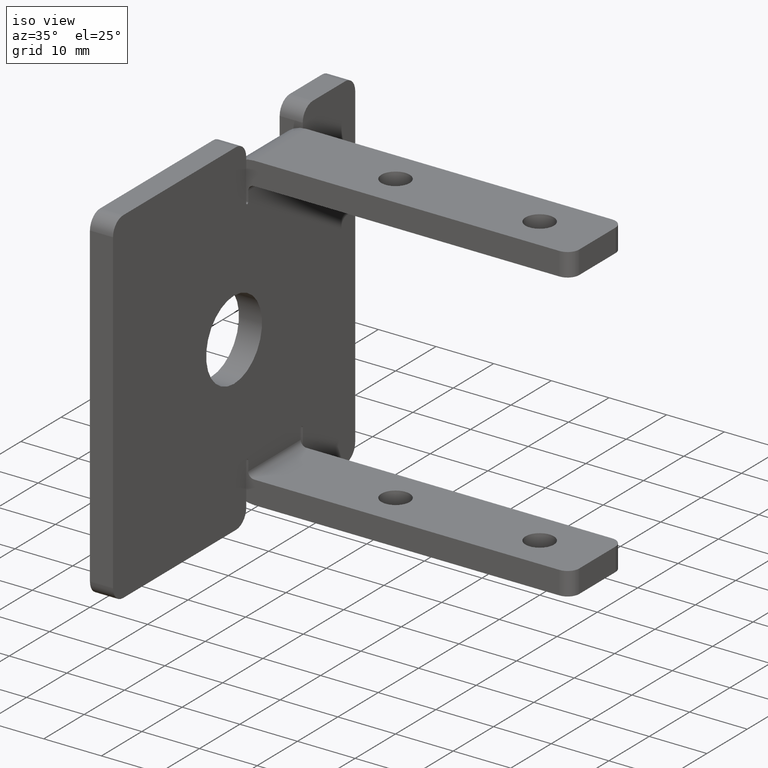
[diagram: clean part render]
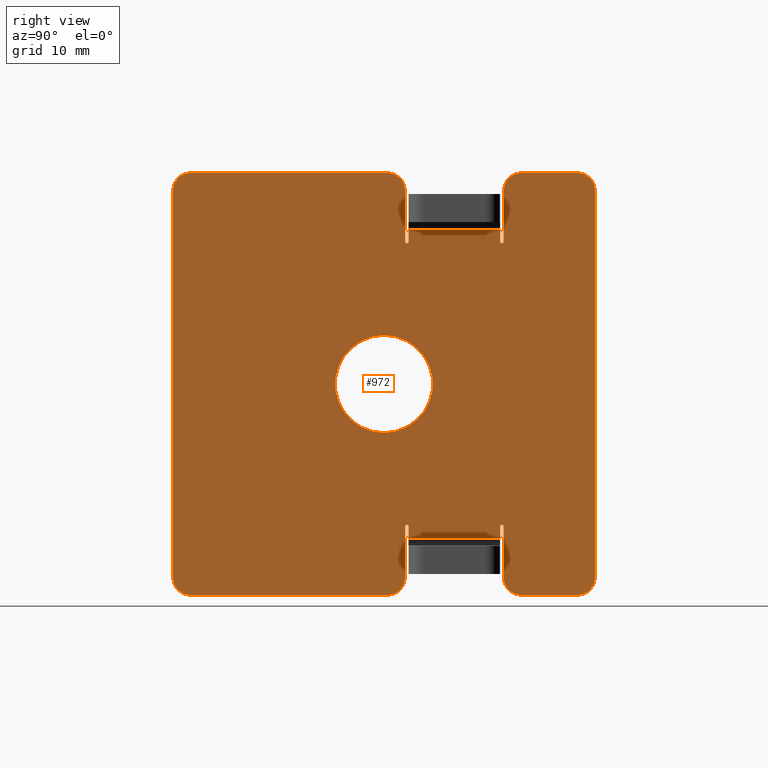
[diagram: tour spotlight — one face highlighted and labeled with its STEP entity id]
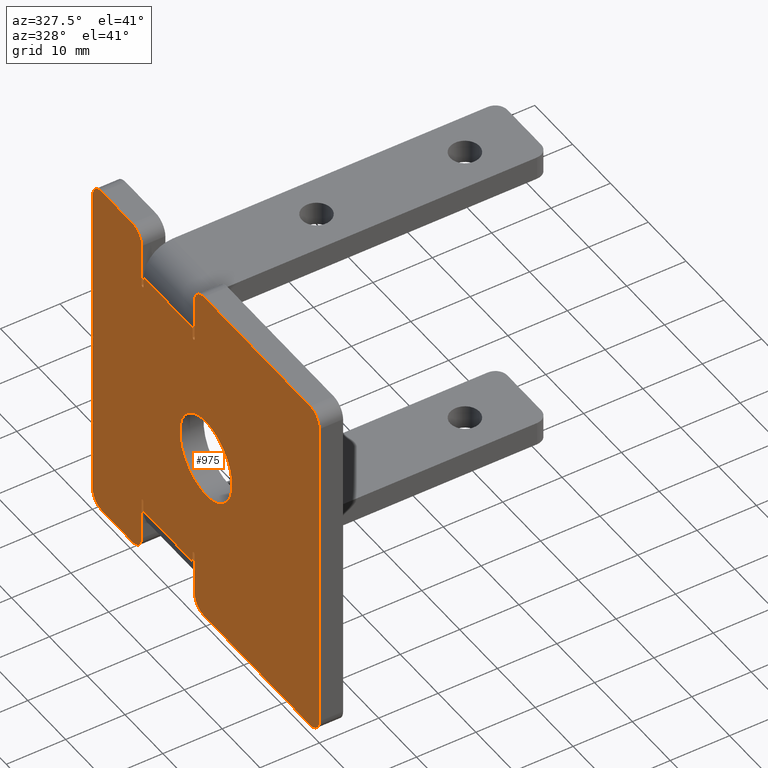
[diagram: tour spotlight — one face highlighted and labeled with its STEP entity id]
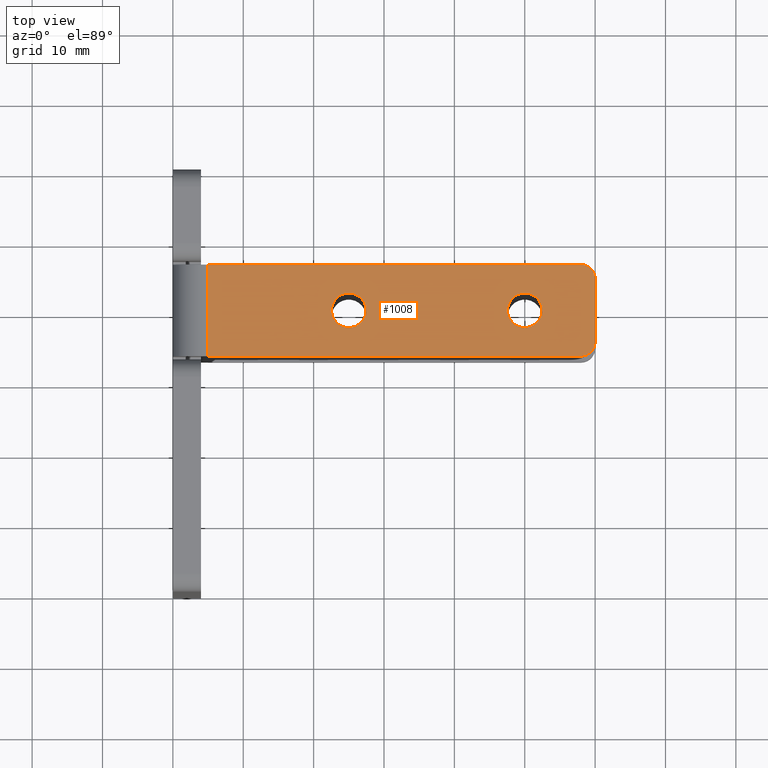
[diagram: tour spotlight — one face highlighted and labeled with its STEP entity id]
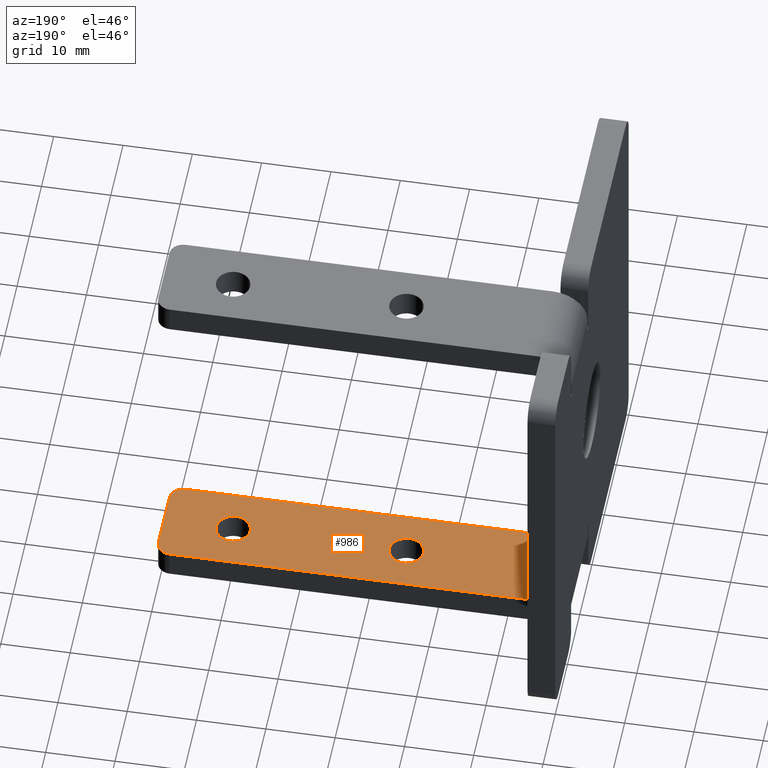
[diagram: tour spotlight — one face highlighted and labeled with its STEP entity id]
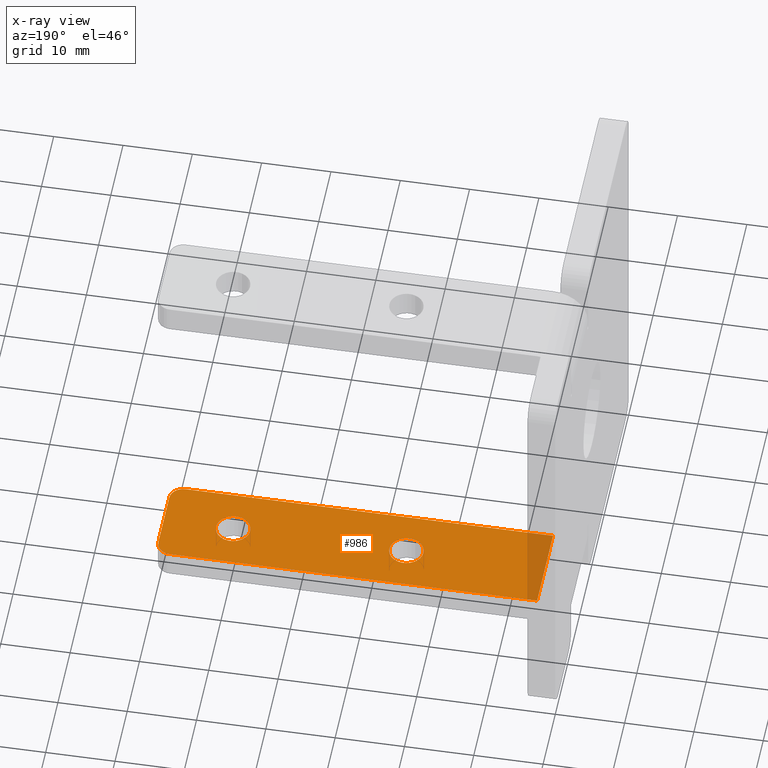
[diagram: x-ray of the same camera — body ghosted, this tour face saturated]
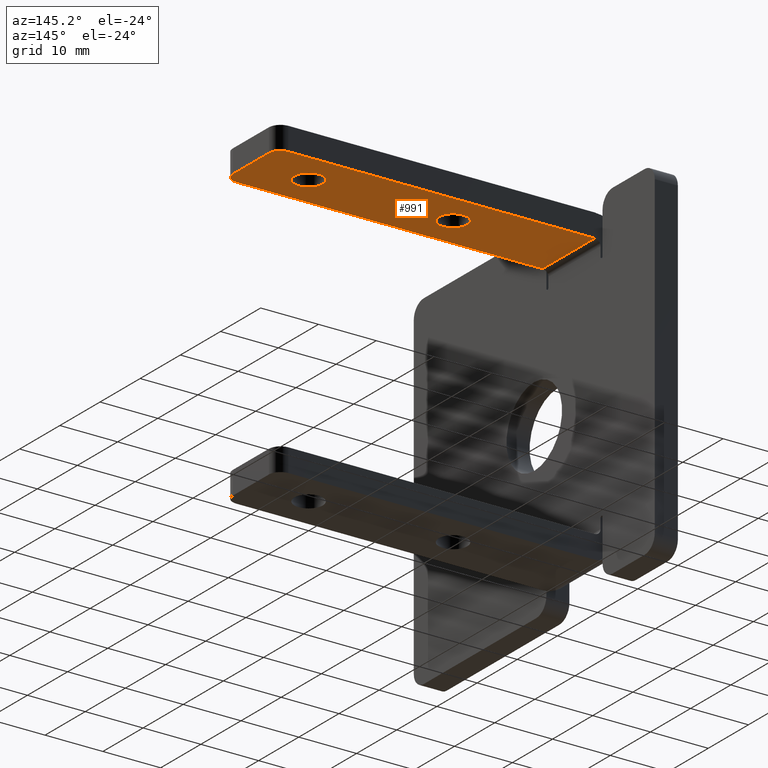
[diagram: tour spotlight — one face highlighted and labeled with its STEP entity id]
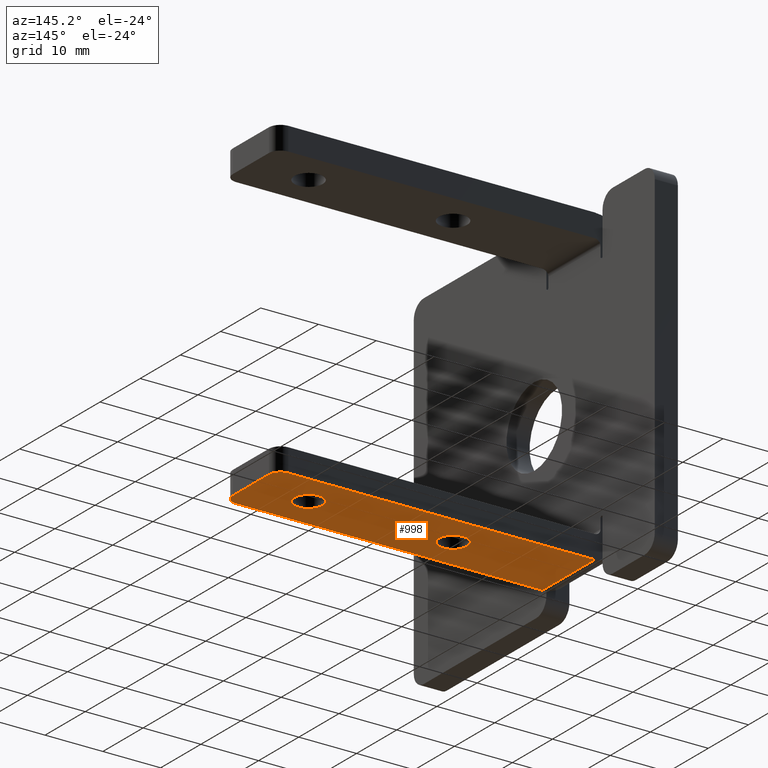
[diagram: tour spotlight — one face highlighted and labeled with its STEP entity id]
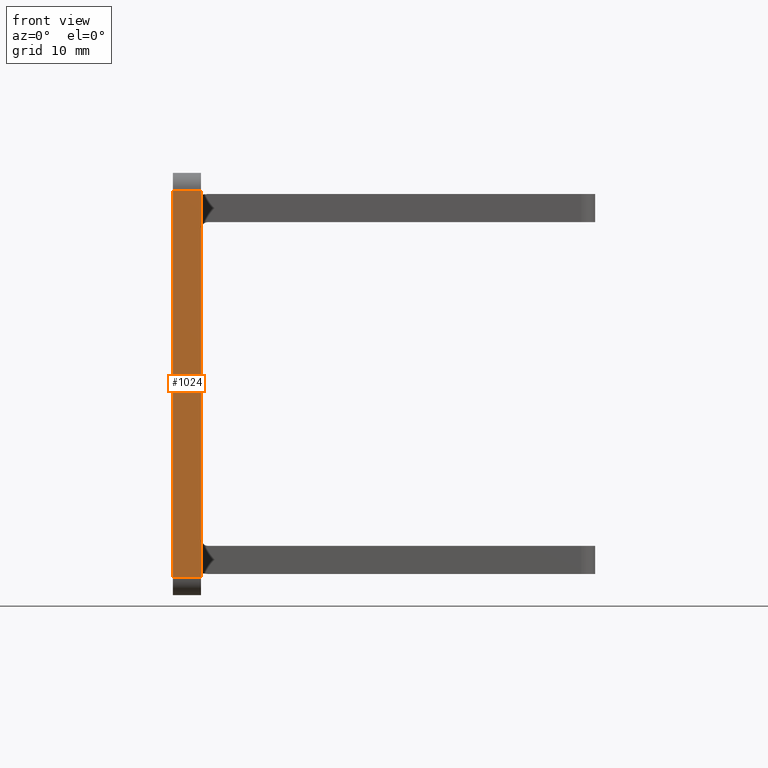
[diagram: tour spotlight — one face highlighted and labeled with its STEP entity id]
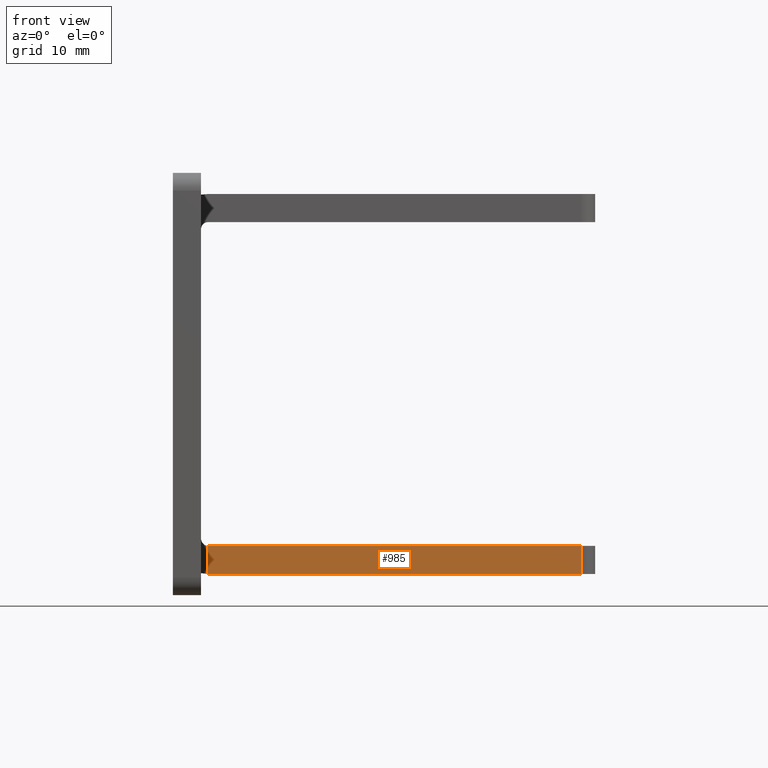
[diagram: tour spotlight — one face highlighted and labeled with its STEP entity id]
A machine part: a face-by-face anatomy tour. The part has 55 B-rep faces; the first image is the clean iso view, then the 8 largest visible faces are spotlighted one at a time (largest first), each with its STEP entity span.

Face 1 — right view, entity #972. In plain terms, the highlighted planar face has unit normal (1, 0, 0).
Definition (entity closure, byte-faithful):
#15=FACE_BOUND('',#113,.T.);
#26=PLANE('',#1049);
#57=FACE_OUTER_BOUND('',#112,.T.);
#112=EDGE_LOOP('',(#661,#662,#663,#664,#665,#666,#667,#668,#669,#670,#671,
#672,#673,#674,#675,#676,#677,#678,#679,#680,#681,#682,#683,#684,#685,#686,
#687,#688));
#113=EDGE_LOOP('',(#689,#690));
#177=LINE('',#1476,#270);
#180=LINE('',#1482,#273);
#181=LINE('',#1486,#274);
#182=LINE('',#1488,#275);
#183=LINE('',#1490,#276);
#184=LINE('',#1494,#277);
#185=LINE('',#1498,#278);
#186=LINE('',#1502,#279);
#187=LINE('',#1506,#280);
#188=LINE('',#1510,#281);
#189=LINE('',#1514,#282);
#190=LINE('',#1516,#283);
#191=LINE('',#1518,#284);
#192=LINE('',#1522,#285);
#193=LINE('',#1526,#286);
#194=LINE('',#1530,#287);
#270=VECTOR('',#1165,10.);
#273=VECTOR('',#1170,10.);
#274=VECTOR('',#1173,10.);
#275=VECTOR('',#1174,10.);
#276=VECTOR('',#1175,10.);
#277=VECTOR('',#1178,10.);
#278=VECTOR('',#1181,10.);
#279=VECTOR('',#1184,10.);
#280=VECTOR('',#1187,10.);
#281=VECTOR('',#1190,10.);
#282=VECTOR('',#1193,10.);
#283=VECTOR('',#1194,10.);
#284=VECTOR('',#1195,10.);
#285=VECTOR('',#1198,10.);
#286=VECTOR('',#1201,10.);
#287=VECTOR('',#1204,10.);
#361=CIRCLE('',#1046,2.5);
#363=CIRCLE('',#1050,0.249999999999999);
#364=CIRCLE('',#1051,0.25);
#365=CIRCLE('',#1052,2.5);
#366=CIRCLE('',#1053,2.5);
#367=CIRCLE('',#1054,2.5);
#368=CIRCLE('',#1055,2.5);
#369=CIRCLE('',#1056,0.25);
#370=CIRCLE('',#1057,0.250000000000001);
#371=CIRCLE('',#1058,2.5);
#372=CIRCLE('',#1059,2.5);
#373=CIRCLE('',#1060,2.5);
#374=CIRCLE('',#1061,6.9175);
#375=CIRCLE('',#1062,6.9175);
#414=VERTEX_POINT('',#1466);
#415=VERTEX_POINT('',#1467);
#418=VERTEX_POINT('',#1475);
#420=VERTEX_POINT('',#1481);
#421=VERTEX_POINT('',#1483);
#422=VERTEX_POINT('',#1485);
#423=VERTEX_POINT('',#1487);
#424=VERTEX_POINT('',#1489);
#425=VERTEX_POINT('',#1491);
#426=VERTEX_POINT('',#1493);
#427=VERTEX_POINT('',#1495);
#428=VERTEX_POINT('',#1497);
#429=VERTEX_POINT('',#1499);
#430=VERTEX_POINT('',#1501);
#431=VERTEX_POINT('',#1503);
#432=VERTEX_POINT('',#1505);
#433=VERTEX_POINT('',#1507);
#434=VERTEX_POINT('',#1509);
#435=VERTEX_POINT('',#1511);
#436=VERTEX_POINT('',#1513);
#437=VERTEX_POINT('',#1515);
#438=VERTEX_POINT('',#1517);
#439=VERTEX_POINT('',#1519);
#440=VERTEX_POINT('',#1521);
#441=VERTEX_POINT('',#1523);
#442=VERTEX_POINT('',#1525);
#443=VERTEX_POINT('',#1527);
#444=VERTEX_POINT('',#1529);
#445=VERTEX_POINT('',#1532);
#446=VERTEX_POINT('',#1533);
#507=EDGE_CURVE('',#414,#415,#361,.T.);
#511=EDGE_CURVE('',#415,#418,#177,.T.);
#514=EDGE_CURVE('',#414,#420,#180,.T.);
#515=EDGE_CURVE('',#420,#421,#363,.T.);
#516=EDGE_CURVE('',#421,#422,#181,.T.);
#517=EDGE_CURVE('',#422,#423,#182,.T.);
#518=EDGE_CURVE('',#423,#424,#183,.T.);
#519=EDGE_CURVE('',#424,#425,#364,.T.);
#520=EDGE_CURVE('',#425,#426,#184,.T.);
#521=EDGE_CURVE('',#427,#426,#365,.T.);
#522=EDGE_CURVE('',#428,#427,#185,.T.);
#523=EDGE_CURVE('',#429,#428,#366,.T.);
#524=EDGE_CURVE('',#430,#429,#186,.T.);
#525=EDGE_CURVE('',#431,#430,#367,.T.);
#526=EDGE_CURVE('',#432,#431,#187,.T.);
#527=EDGE_CURVE('',#433,#432,#368,.T.);
#528=EDGE_CURVE('',#433,#434,#188,.T.);
#529=EDGE_CURVE('',#434,#435,#369,.T.);
#530=EDGE_CURVE('',#435,#436,#189,.T.);
#531=EDGE_CURVE('',#436,#437,#190,.T.);
#532=EDGE_CURVE('',#437,#438,#191,.T.);
#533=EDGE_CURVE('',#438,#439,#370,.T.);
#534=EDGE_CURVE('',#439,#440,#192,.T.);
#535=EDGE_CURVE('',#441,#440,#371,.T.);
#536=EDGE_CURVE('',#442,#441,#193,.T.);
#537=EDGE_CURVE('',#443,#442,#372,.T.);
#538=EDGE_CURVE('',#444,#443,#194,.T.);
#539=EDGE_CURVE('',#418,#444,#373,.T.);
#540=EDGE_CURVE('',#445,#446,#374,.T.);
#541=EDGE_CURVE('',#446,#445,#375,.T.);
#661=ORIENTED_EDGE('',*,*,#507,.F.);
#662=ORIENTED_EDGE('',*,*,#514,.T.);
#663=ORIENTED_EDGE('',*,*,#515,.T.);
#664=ORIENTED_EDGE('',*,*,#516,.T.);
#665=ORIENTED_EDGE('',*,*,#517,.T.);
#666=ORIENTED_EDGE('',*,*,#518,.T.);
#667=ORIENTED_EDGE('',*,*,#519,.T.);
#668=ORIENTED_EDGE('',*,*,#520,.T.);
#669=ORIENTED_EDGE('',*,*,#521,.F.);
#670=ORIENTED_EDGE('',*,*,#522,.F.);
#671=ORIENTED_EDGE('',*,*,#523,.F.);
#672=ORIENTED_EDGE('',*,*,#524,.F.);
#673=ORIENTED_EDGE('',*,*,#525,.F.);
#674=ORIENTED_EDGE('',*,*,#526,.F.);
#675=ORIENTED_EDGE('',*,*,#527,.F.);
#676=ORIENTED_EDGE('',*,*,#528,.T.);
#677=ORIENTED_EDGE('',*,*,#529,.T.);
#678=ORIENTED_EDGE('',*,*,#530,.T.);
#679=ORIENTED_EDGE('',*,*,#531,.T.);
#680=ORIENTED_EDGE('',*,*,#532,.T.);
#681=ORIENTED_EDGE('',*,*,#533,.T.);
#682=ORIENTED_EDGE('',*,*,#534,.T.);
#683=ORIENTED_EDGE('',*,*,#535,.F.);
#684=ORIENTED_EDGE('',*,*,#536,.F.);
#685=ORIENTED_EDGE('',*,*,#537,.F.);
#686=ORIENTED_EDGE('',*,*,#538,.F.);
#687=ORIENTED_EDGE('',*,*,#539,.F.);
#688=ORIENTED_EDGE('',*,*,#511,.F.);
#689=ORIENTED_EDGE('',*,*,#540,.T.);
#690=ORIENTED_EDGE('',*,*,#541,.T.);
#972=ADVANCED_FACE('',(#57,#15),#26,.T.);
#1046=AXIS2_PLACEMENT_3D('',#1468,#1157,#1158);
#1049=AXIS2_PLACEMENT_3D('',#1480,#1168,#1169);
#1050=AXIS2_PLACEMENT_3D('',#1484,#1171,#1172);
#1051=AXIS2_PLACEMENT_3D('',#1492,#1176,#1177);
#1052=AXIS2_PLACEMENT_3D('',#1496,#1179,#1180);
#1053=AXIS2_PLACEMENT_3D('',#1500,#1182,#1183);
#1054=AXIS2_PLACEMENT_3D('',#1504,#1185,#1186);
#1055=AXIS2_PLACEMENT_3D('',#1508,#1188,#1189);
#1056=AXIS2_PLACEMENT_3D('',#1512,#1191,#1192);
#1057=AXIS2_PLACEMENT_3D('',#1520,#1196,#1197);
#1058=AXIS2_PLACEMENT_3D('',#1524,#1199,#1200);
#1059=AXIS2_PLACEMENT_3D('',#1528,#1202,#1203);
#1060=AXIS2_PLACEMENT_3D('',#1531,#1205,#1206);
#1061=AXIS2_PLACEMENT_3D('',#1534,#1207,#1208);
#1062=AXIS2_PLACEMENT_3D('',#1535,#1209,#1210);
#1157=DIRECTION('center_axis',(-1.,0.,0.));
#1158=DIRECTION('ref_axis',(0.,-0.707106781186547,0.707106781186547));
#1165=DIRECTION('',(0.,1.,7.40148683083438E-17));
#1168=DIRECTION('center_axis',(1.,0.,0.));
#1169=DIRECTION('ref_axis',(0.,0.,-1.));
#1170=DIRECTION('',(0.,0.,-1.));
#1171=DIRECTION('center_axis',(-1.,0.,0.));
#1172=DIRECTION('ref_axis',(0.,-1.,0.));
#1173=DIRECTION('',(0.,1.11022302462516E-15,1.));
#1174=DIRECTION('',(0.,-1.,6.34413156928661E-16));
#1175=DIRECTION('',(0.,-5.55111512312578E-16,-1.));
#1176=DIRECTION('center_axis',(-1.,0.,0.));
#1177=DIRECTION('ref_axis',(0.,1.,0.));
#1178=DIRECTION('',(0.,5.55111512312578E-16,1.));
#1179=DIRECTION('center_axis',(-1.,0.,0.));
#1180=DIRECTION('ref_axis',(0.,0.707106781186546,0.707106781186549));
#1181=DIRECTION('',(0.,1.,7.40148683083438E-17));
#1182=DIRECTION('center_axis',(-1.,0.,0.));
#1183=DIRECTION('ref_axis',(0.,-0.707106781186547,0.707106781186547));
#1184=DIRECTION('',(0.,-2.22044604925031E-16,1.));
#1185=DIRECTION('center_axis',(-1.,0.,0.));
#1186=DIRECTION('ref_axis',(0.,-0.707106781186547,-0.707106781186547));
#1187=DIRECTION('',(0.,-1.,0.));
#1188=DIRECTION('center_axis',(-1.,0.,0.));
#1189=DIRECTION('ref_axis',(0.,0.707106781186547,-0.707106781186548));
#1190=DIRECTION('',(0.,1.38777878078146E-16,1.));
#1191=DIRECTION('center_axis',(-1.,0.,0.));
#1192=DIRECTION('ref_axis',(0.,1.,0.));
#1193=DIRECTION('',(0.,0.,-1.));
#1194=DIRECTION('',(0.,1.,0.));
#1195=DIRECTION('',(0.,0.,1.));
#1196=DIRECTION('center_axis',(-1.,0.,0.));
#1197=DIRECTION('ref_axis',(0.,-1.,0.));
#1198=DIRECTION('',(0.,0.,-1.));
#1199=DIRECTION('center_axis',(-1.,0.,0.));
#1200=DIRECTION('ref_axis',(0.,-0.707106781186547,-0.707106781186547));
#1201=DIRECTION('',(0.,-1.,0.));
#1202=DIRECTION('center_axis',(-1.,0.,0.));
#1203=DIRECTION('ref_axis',(0.,0.707106781186547,-0.707106781186547));
#1204=DIRECTION('',(0.,1.48029736616688E-16,-1.));
#1205=DIRECTION('center_axis',(-1.,0.,0.));
#1206=DIRECTION('ref_axis',(0.,0.707106781186547,0.707106781186547));
#1207=DIRECTION('center_axis',(-1.,0.,0.));
#1208=DIRECTION('ref_axis',(0.,0.,-1.));
#1209=DIRECTION('center_axis',(-1.,0.,0.));
#1210=DIRECTION('ref_axis',(0.,0.,-1.));
#1466=CARTESIAN_POINT('',(4.,17.0000000000001,27.5));
#1467=CARTESIAN_POINT('',(4.,19.5000000000001,30.));
#1468=CARTESIAN_POINT('Origin',(4.,19.5000000000001,27.5));
#1475=CARTESIAN_POINT('',(4.,27.5,30.));
#1476=CARTESIAN_POINT('',(4.,30.,30.));
#1480=CARTESIAN_POINT('Origin',(4.,1.11022302462516E-15,-8.07434927000114E-16));
#1481=CARTESIAN_POINT('',(4.,17.0000000000001,20.2500000000018));
#1482=CARTESIAN_POINT('',(4.,17.0000000000001,11.0000000000009));
#1483=CARTESIAN_POINT('',(4.,16.5000000000001,20.2500000000018));
#1484=CARTESIAN_POINT('Origin',(4.,16.7500000000001,20.2500000000018));
#1485=CARTESIAN_POINT('',(4.,16.5000000000001,22.0000000000018));
#1486=CARTESIAN_POINT('',(4.,16.5000000000001,11.0000000000009));
#1487=CARTESIAN_POINT('',(4.,3.50000000000007,22.0000000000018));
#1488=CARTESIAN_POINT('',(4.,1.50000000000004,22.0000000000018));
#1489=CARTESIAN_POINT('',(4.,3.50000000000007,20.2500000000019));
#1490=CARTESIAN_POINT('',(4.,3.50000000000006,10.1250000000009));
#1491=CARTESIAN_POINT('',(4.,3.00000000000007,20.2500000000019));
#1492=CARTESIAN_POINT('Origin',(4.,3.25000000000007,20.2500000000019));
#1493=CARTESIAN_POINT('',(4.,3.00000000000007,27.5));
#1494=CARTESIAN_POINT('',(4.,3.00000000000006,11.0000000000009));
#1495=CARTESIAN_POINT('',(4.,0.500000000000065,30.));
#1496=CARTESIAN_POINT('Origin',(4.,0.500000000000067,27.5));
#1497=CARTESIAN_POINT('',(4.,-27.5,30.));
#1498=CARTESIAN_POINT('',(4.,30.,30.));
#1499=CARTESIAN_POINT('',(4.,-30.,27.5));
#1500=CARTESIAN_POINT('Origin',(4.,-27.5,27.5));
#1501=CARTESIAN_POINT('',(4.,-30.,-27.5));
#1502=CARTESIAN_POINT('',(4.,-30.,30.));
#1503=CARTESIAN_POINT('',(4.,-27.5,-30.));
#1504=CARTESIAN_POINT('Origin',(4.,-27.5,-27.5));
#1505=CARTESIAN_POINT('',(4.,0.500000000000007,-30.));
#1506=CARTESIAN_POINT('',(4.,-30.,-30.));
#1507=CARTESIAN_POINT('',(4.,3.00000000000001,-27.5));
#1508=CARTESIAN_POINT('Origin',(4.,0.500000000000009,-27.5));
#1509=CARTESIAN_POINT('',(4.,3.00000000000001,-20.2500000000001));
#1510=CARTESIAN_POINT('',(4.,3.00000000000001,-11.));
#1511=CARTESIAN_POINT('',(4.,3.50000000000001,-20.2500000000001));
#1512=CARTESIAN_POINT('Origin',(4.,3.25000000000001,-20.2500000000001));
#1513=CARTESIAN_POINT('',(4.,3.50000000000001,-22.0000000000001));
#1514=CARTESIAN_POINT('',(4.,3.50000000000001,-11.));
#1515=CARTESIAN_POINT('',(4.,16.5,-22.0000000000001));
#1516=CARTESIAN_POINT('',(4.,8.50000000000001,-22.0000000000001));
#1517=CARTESIAN_POINT('',(4.,16.5,-20.2500000000001));
#1518=CARTESIAN_POINT('',(4.,16.5,-10.125));
#1519=CARTESIAN_POINT('',(4.,17.,-20.2500000000001));
#1520=CARTESIAN_POINT('Origin',(4.,16.75,-20.2500000000001));
#1521=CARTESIAN_POINT('',(4.,17.,-27.5));
#1522=CARTESIAN_POINT('',(4.,17.,-11.));
#1523=CARTESIAN_POINT('',(4.,19.5,-30.));
#1524=CARTESIAN_POINT('Origin',(4.,19.5,-27.5));
#1525=CARTESIAN_POINT('',(4.,27.5,-30.));
#1526=CARTESIAN_POINT('',(4.,-30.,-30.));
#1527=CARTESIAN_POINT('',(4.,30.,-27.5));
#1528=CARTESIAN_POINT('Origin',(4.,27.5,-27.5));
#1529=CARTESIAN_POINT('',(4.,30.,27.5));
#1530=CARTESIAN_POINT('',(4.,30.,-30.));
#1531=CARTESIAN_POINT('Origin',(4.,27.5,27.5));
#1532=CARTESIAN_POINT('',(4.,2.22044604925031E-15,-6.9175));
#1533=CARTESIAN_POINT('',(4.,1.37329662594013E-15,6.9175));
#1534=CARTESIAN_POINT('Origin',(4.,2.22044604925031E-15,0.));
#1535=CARTESIAN_POINT('Origin',(4.,2.22044604925031E-15,0.));

Face 2 — auxiliary view, entity #975. In plain terms, the highlighted planar face has unit normal (1, 0, 0).
Definition (entity closure, byte-faithful):
#16=FACE_BOUND('',#117,.T.);
#28=PLANE('',#1066);
#60=FACE_OUTER_BOUND('',#116,.T.);
#116=EDGE_LOOP('',(#699,#700,#701,#702,#703,#704,#705,#706,#707,#708,#709,
#710,#711,#712,#713,#714,#715,#716,#717,#718,#719,#720,#721,#722,#723,#724,
#725,#726));
#117=EDGE_LOOP('',(#727));
#179=LINE('',#1479,#272);
#197=LINE('',#1544,#290);
#199=LINE('',#1550,#292);
#200=LINE('',#1553,#293);
#201=LINE('',#1557,#294);
#202=LINE('',#1559,#295);
#203=LINE('',#1561,#296);
#204=LINE('',#1565,#297);
#205=LINE('',#1569,#298);
#206=LINE('',#1573,#299);
#207=LINE('',#1577,#300);
#208=LINE('',#1581,#301);
#209=LINE('',#1585,#302);
#210=LINE('',#1587,#303);
#211=LINE('',#1589,#304);
#212=LINE('',#1592,#305);
#272=VECTOR('',#1167,10.);
#290=VECTOR('',#1219,10.);
#292=VECTOR('',#1225,10.);
#293=VECTOR('',#1228,10.);
#294=VECTOR('',#1231,10.);
#295=VECTOR('',#1232,10.);
#296=VECTOR('',#1233,10.);
#297=VECTOR('',#1236,10.);
#298=VECTOR('',#1239,10.);
#299=VECTOR('',#1242,10.);
#300=VECTOR('',#1245,10.);
#301=VECTOR('',#1248,10.);
#302=VECTOR('',#1251,10.);
#303=VECTOR('',#1252,10.);
#304=VECTOR('',#1253,10.);
#305=VECTOR('',#1256,10.);
#362=CIRCLE('',#1047,2.5);
#376=CIRCLE('',#1064,2.5);
#377=CIRCLE('',#1067,2.5);
#378=CIRCLE('',#1068,2.5);
#379=CIRCLE('',#1069,0.250000000000001);
#380=CIRCLE('',#1070,0.25);
#381=CIRCLE('',#1071,2.5);
#382=CIRCLE('',#1072,2.5);
#383=CIRCLE('',#1073,2.5);
#384=CIRCLE('',#1074,2.5);
#385=CIRCLE('',#1075,0.25);
#386=CIRCLE('',#1076,0.249999999999999);
#387=CIRCLE('',#1077,6.9175);
#416=VERTEX_POINT('',#1469);
#417=VERTEX_POINT('',#1471);
#419=VERTEX_POINT('',#1477);
#447=VERTEX_POINT('',#1537);
#448=VERTEX_POINT('',#1538);
#449=VERTEX_POINT('',#1543);
#450=VERTEX_POINT('',#1547);
#451=VERTEX_POINT('',#1549);
#452=VERTEX_POINT('',#1552);
#453=VERTEX_POINT('',#1554);
#454=VERTEX_POINT('',#1556);
#455=VERTEX_POINT('',#1558);
#456=VERTEX_POINT('',#1560);
#457=VERTEX_POINT('',#1562);
#458=VERTEX_POINT('',#1564);
#459=VERTEX_POINT('',#1566);
#460=VERTEX_POINT('',#1568);
#461=VERTEX_POINT('',#1570);
#462=VERTEX_POINT('',#1572);
#463=VERTEX_POINT('',#1574);
#464=VERTEX_POINT('',#1576);
#465=VERTEX_POINT('',#1578);
#466=VERTEX_POINT('',#1580);
#467=VERTEX_POINT('',#1582);
#468=VERTEX_POINT('',#1584);
#469=VERTEX_POINT('',#1586);
#470=VERTEX_POINT('',#1588);
#471=VERTEX_POINT('',#1590);
#472=VERTEX_POINT('',#1593);
#509=EDGE_CURVE('',#416,#417,#362,.T.);
#513=EDGE_CURVE('',#419,#416,#179,.T.);
#542=EDGE_CURVE('',#447,#448,#376,.T.);
#545=EDGE_CURVE('',#448,#449,#197,.T.);
#547=EDGE_CURVE('',#450,#419,#377,.T.);
#548=EDGE_CURVE('',#451,#450,#199,.T.);
#549=EDGE_CURVE('',#449,#451,#378,.T.);
#550=EDGE_CURVE('',#447,#452,#200,.T.);
#551=EDGE_CURVE('',#452,#453,#379,.T.);
#552=EDGE_CURVE('',#453,#454,#201,.T.);
#553=EDGE_CURVE('',#454,#455,#202,.T.);
#554=EDGE_CURVE('',#455,#456,#203,.T.);
#555=EDGE_CURVE('',#456,#457,#380,.T.);
#556=EDGE_CURVE('',#457,#458,#204,.T.);
#557=EDGE_CURVE('',#459,#458,#381,.T.);
#558=EDGE_CURVE('',#460,#459,#205,.T.);
#559=EDGE_CURVE('',#461,#460,#382,.T.);
#560=EDGE_CURVE('',#462,#461,#206,.T.);
#561=EDGE_CURVE('',#463,#462,#383,.T.);
#562=EDGE_CURVE('',#464,#463,#207,.T.);
#563=EDGE_CURVE('',#465,#464,#384,.T.);
#564=EDGE_CURVE('',#465,#466,#208,.T.);
#565=EDGE_CURVE('',#466,#467,#385,.T.);
#566=EDGE_CURVE('',#467,#468,#209,.T.);
#567=EDGE_CURVE('',#468,#469,#210,.T.);
#568=EDGE_CURVE('',#469,#470,#211,.T.);
#569=EDGE_CURVE('',#470,#471,#386,.T.);
#570=EDGE_CURVE('',#471,#417,#212,.T.);
#571=EDGE_CURVE('',#472,#472,#387,.T.);
#699=ORIENTED_EDGE('',*,*,#509,.F.);
#700=ORIENTED_EDGE('',*,*,#513,.F.);
#701=ORIENTED_EDGE('',*,*,#547,.F.);
#702=ORIENTED_EDGE('',*,*,#548,.F.);
#703=ORIENTED_EDGE('',*,*,#549,.F.);
#704=ORIENTED_EDGE('',*,*,#545,.F.);
#705=ORIENTED_EDGE('',*,*,#542,.F.);
#706=ORIENTED_EDGE('',*,*,#550,.T.);
#707=ORIENTED_EDGE('',*,*,#551,.T.);
#708=ORIENTED_EDGE('',*,*,#552,.T.);
#709=ORIENTED_EDGE('',*,*,#553,.T.);
#710=ORIENTED_EDGE('',*,*,#554,.T.);
#711=ORIENTED_EDGE('',*,*,#555,.T.);
#712=ORIENTED_EDGE('',*,*,#556,.T.);
#713=ORIENTED_EDGE('',*,*,#557,.F.);
#714=ORIENTED_EDGE('',*,*,#558,.F.);
#715=ORIENTED_EDGE('',*,*,#559,.F.);
#716=ORIENTED_EDGE('',*,*,#560,.F.);
#717=ORIENTED_EDGE('',*,*,#561,.F.);
#718=ORIENTED_EDGE('',*,*,#562,.F.);
#719=ORIENTED_EDGE('',*,*,#563,.F.);
#720=ORIENTED_EDGE('',*,*,#564,.T.);
#721=ORIENTED_EDGE('',*,*,#565,.T.);
#722=ORIENTED_EDGE('',*,*,#566,.T.);
#723=ORIENTED_EDGE('',*,*,#567,.T.);
#724=ORIENTED_EDGE('',*,*,#568,.T.);
#725=ORIENTED_EDGE('',*,*,#569,.T.);
#726=ORIENTED_EDGE('',*,*,#570,.T.);
#727=ORIENTED_EDGE('',*,*,#571,.T.);
#975=ADVANCED_FACE('',(#60,#16),#28,.F.);
#1047=AXIS2_PLACEMENT_3D('',#1472,#1160,#1161);
#1064=AXIS2_PLACEMENT_3D('',#1539,#1213,#1214);
#1066=AXIS2_PLACEMENT_3D('',#1546,#1221,#1222);
#1067=AXIS2_PLACEMENT_3D('',#1548,#1223,#1224);
#1068=AXIS2_PLACEMENT_3D('',#1551,#1226,#1227);
#1069=AXIS2_PLACEMENT_3D('',#1555,#1229,#1230);
#1070=AXIS2_PLACEMENT_3D('',#1563,#1234,#1235);
#1071=AXIS2_PLACEMENT_3D('',#1567,#1237,#1238);
#1072=AXIS2_PLACEMENT_3D('',#1571,#1240,#1241);
#1073=AXIS2_PLACEMENT_3D('',#1575,#1243,#1244);
#1074=AXIS2_PLACEMENT_3D('',#1579,#1246,#1247);
#1075=AXIS2_PLACEMENT_3D('',#1583,#1249,#1250);
#1076=AXIS2_PLACEMENT_3D('',#1591,#1254,#1255);
#1077=AXIS2_PLACEMENT_3D('',#1594,#1257,#1258);
#1160=DIRECTION('center_axis',(1.,0.,0.));
#1161=DIRECTION('ref_axis',(0.,-0.707106781186547,0.707106781186547));
#1167=DIRECTION('',(0.,-1.,-7.40148683083438E-17));
#1213=DIRECTION('center_axis',(1.,0.,0.));
#1214=DIRECTION('ref_axis',(0.,-0.707106781186547,-0.707106781186547));
#1219=DIRECTION('',(0.,1.,0.));
#1221=DIRECTION('center_axis',(1.,0.,0.));
#1222=DIRECTION('ref_axis',(0.,0.,-1.));
#1223=DIRECTION('center_axis',(1.,0.,0.));
#1224=DIRECTION('ref_axis',(0.,0.707106781186547,0.707106781186547));
#1225=DIRECTION('',(0.,-1.48029736616688E-16,1.));
#1226=DIRECTION('center_axis',(1.,0.,0.));
#1227=DIRECTION('ref_axis',(0.,0.707106781186547,-0.707106781186547));
#1228=DIRECTION('',(0.,0.,1.));
#1229=DIRECTION('center_axis',(1.,0.,0.));
#1230=DIRECTION('ref_axis',(0.,-1.,0.));
#1231=DIRECTION('',(0.,0.,-1.));
#1232=DIRECTION('',(0.,-1.,0.));
#1233=DIRECTION('',(0.,0.,1.));
#1234=DIRECTION('center_axis',(1.,0.,0.));
#1235=DIRECTION('ref_axis',(0.,1.,0.));
#1236=DIRECTION('',(0.,-1.38777878078146E-16,-1.));
#1237=DIRECTION('center_axis',(1.,0.,0.));
#1238=DIRECTION('ref_axis',(0.,0.707106781186547,-0.707106781186548));
#1239=DIRECTION('',(0.,1.,0.));
#1240=DIRECTION('center_axis',(1.,0.,0.));
#1241=DIRECTION('ref_axis',(0.,-0.707106781186547,-0.707106781186547));
#1242=DIRECTION('',(0.,2.22044604925031E-16,-1.));
#1243=DIRECTION('center_axis',(1.,0.,0.));
#1244=DIRECTION('ref_axis',(0.,-0.707106781186547,0.707106781186547));
#1245=DIRECTION('',(0.,-1.,-7.40148683083438E-17));
#1246=DIRECTION('center_axis',(1.,0.,0.));
#1247=DIRECTION('ref_axis',(0.,0.707106781186546,0.707106781186549));
#1248=DIRECTION('',(0.,-5.55111512312578E-16,-1.));
#1249=DIRECTION('center_axis',(1.,0.,0.));
#1250=DIRECTION('ref_axis',(0.,1.,0.));
#1251=DIRECTION('',(0.,5.55111512312578E-16,1.));
#1252=DIRECTION('',(0.,1.,-6.34413156928661E-16));
#1253=DIRECTION('',(0.,-1.11022302462516E-15,-1.));
#1254=DIRECTION('center_axis',(1.,0.,0.));
#1255=DIRECTION('ref_axis',(0.,-1.,0.));
#1256=DIRECTION('',(0.,0.,1.));
#1257=DIRECTION('center_axis',(1.,0.,0.));
#1258=DIRECTION('ref_axis',(0.,0.,-1.));
#1469=CARTESIAN_POINT('',(0.,19.5000000000001,30.));
#1471=CARTESIAN_POINT('',(0.,17.0000000000001,27.5));
#1472=CARTESIAN_POINT('Origin',(0.,19.5000000000001,27.5));
#1477=CARTESIAN_POINT('',(0.,27.5,30.));
#1479=CARTESIAN_POINT('',(0.,30.,30.));
#1537=CARTESIAN_POINT('',(0.,17.,-27.5));
#1538=CARTESIAN_POINT('',(0.,19.5,-30.));
#1539=CARTESIAN_POINT('Origin',(0.,19.5,-27.5));
#1543=CARTESIAN_POINT('',(0.,27.5,-30.));
#1544=CARTESIAN_POINT('',(0.,-30.,-30.));
#1546=CARTESIAN_POINT('Origin',(0.,1.11022302462516E-15,-1.31208175637519E-15));
#1547=CARTESIAN_POINT('',(0.,30.,27.5));
#1548=CARTESIAN_POINT('Origin',(0.,27.5,27.5));
#1549=CARTESIAN_POINT('',(0.,30.,-27.5));
#1550=CARTESIAN_POINT('',(0.,30.,-30.));
#1551=CARTESIAN_POINT('Origin',(0.,27.5,-27.5));
#1552=CARTESIAN_POINT('',(-1.11022302462516E-15,17.,-20.2500000000001));
#1553=CARTESIAN_POINT('',(0.,17.,-11.));
#1554=CARTESIAN_POINT('',(-1.11022302462516E-15,16.5,-20.2500000000001));
#1555=CARTESIAN_POINT('Origin',(0.,16.75,-20.2500000000001));
#1556=CARTESIAN_POINT('',(-1.11022302462516E-15,16.5,-22.0000000000001));
#1557=CARTESIAN_POINT('',(0.,16.5,-10.125));
#1558=CARTESIAN_POINT('',(0.,3.50000000000001,-22.0000000000001));
#1559=CARTESIAN_POINT('',(0.,8.50000000000001,-22.0000000000001));
#1560=CARTESIAN_POINT('',(0.,3.50000000000001,-20.2500000000001));
#1561=CARTESIAN_POINT('',(0.,3.50000000000001,-11.));
#1562=CARTESIAN_POINT('',(0.,3.00000000000001,-20.2500000000001));
#1563=CARTESIAN_POINT('Origin',(0.,3.25000000000001,-20.2500000000001));
#1564=CARTESIAN_POINT('',(0.,3.00000000000001,-27.5));
#1565=CARTESIAN_POINT('',(0.,3.00000000000001,-11.));
#1566=CARTESIAN_POINT('',(0.,0.500000000000007,-30.));
#1567=CARTESIAN_POINT('Origin',(0.,0.500000000000009,-27.5));
#1568=CARTESIAN_POINT('',(0.,-27.5,-30.));
#1569=CARTESIAN_POINT('',(0.,-30.,-30.));
#1570=CARTESIAN_POINT('',(0.,-30.,-27.5));
#1571=CARTESIAN_POINT('Origin',(0.,-27.5,-27.5));
#1572=CARTESIAN_POINT('',(0.,-30.,27.5));
#1573=CARTESIAN_POINT('',(0.,-30.,30.));
#1574=CARTESIAN_POINT('',(0.,-27.5,30.));
#1575=CARTESIAN_POINT('Origin',(0.,-27.5,27.5));
#1576=CARTESIAN_POINT('',(0.,0.500000000000065,30.));
#1577=CARTESIAN_POINT('',(0.,30.,30.));
#1578=CARTESIAN_POINT('',(0.,3.00000000000007,27.5));
#1579=CARTESIAN_POINT('Origin',(0.,0.500000000000067,27.5));
#1580=CARTESIAN_POINT('',(0.,3.00000000000007,20.2500000000019));
#1581=CARTESIAN_POINT('',(0.,3.00000000000006,11.0000000000009));
#1582=CARTESIAN_POINT('',(0.,3.50000000000007,20.2500000000019));
#1583=CARTESIAN_POINT('Origin',(0.,3.25000000000007,20.2500000000019));
#1584=CARTESIAN_POINT('',(0.,3.50000000000007,22.0000000000018));
#1585=CARTESIAN_POINT('',(0.,3.50000000000006,10.1250000000009));
#1586=CARTESIAN_POINT('',(-5.55111512312578E-16,16.5000000000001,22.0000000000018));
#1587=CARTESIAN_POINT('',(0.,1.50000000000004,22.0000000000018));
#1588=CARTESIAN_POINT('',(-5.55111512312578E-16,16.5000000000001,20.2500000000018));
#1589=CARTESIAN_POINT('',(0.,16.5000000000001,11.0000000000009));
#1590=CARTESIAN_POINT('',(-5.55111512312578E-16,17.0000000000001,20.2500000000018));
#1591=CARTESIAN_POINT('Origin',(0.,16.7500000000001,20.2500000000018));
#1592=CARTESIAN_POINT('',(0.,17.0000000000001,11.0000000000009));
#1593=CARTESIAN_POINT('',(0.,1.37329662594013E-15,6.9175));
#1594=CARTESIAN_POINT('Origin',(0.,2.22044604925031E-15,0.));

Face 3 — top view, entity #1008. In plain terms, the highlighted planar face has unit normal (0, -0, -1).
Definition (entity closure, byte-faithful):
#23=FACE_BOUND('',#157,.T.);
#24=FACE_BOUND('',#158,.T.);
#46=PLANE('',#1136);
#93=FACE_OUTER_BOUND('',#156,.T.);
#156=EDGE_LOOP('',(#872,#873,#874,#875,#876,#877));
#157=EDGE_LOOP('',(#878));
#158=EDGE_LOOP('',(#879));
#239=LINE('',#1680,#332);
#245=LINE('',#1697,#338);
#254=LINE('',#1721,#347);
#257=LINE('',#1731,#350);
#332=VECTOR('',#1347,10.);
#338=VECTOR('',#1363,2.76);
#347=VECTOR('',#1402,10.);
#350=VECTOR('',#1419,10.);
#389=CIRCLE('',#1080,2.4585);
#394=CIRCLE('',#1087,2.4585);
#402=CIRCLE('',#1106,2.);
#405=CIRCLE('',#1112,2.);
#474=VERTEX_POINT('',#1598);
#479=VERTEX_POINT('',#1612);
#495=VERTEX_POINT('',#1667);
#496=VERTEX_POINT('',#1668);
#500=VERTEX_POINT('',#1678);
#504=VERTEX_POINT('',#1690);
#505=VERTEX_POINT('',#1691);
#506=VERTEX_POINT('',#1696);
#574=EDGE_CURVE('',#474,#474,#389,.T.);
#581=EDGE_CURVE('',#479,#479,#394,.T.);
#608=EDGE_CURVE('',#495,#496,#402,.T.);
#614=EDGE_CURVE('',#500,#495,#239,.T.);
#619=EDGE_CURVE('',#504,#505,#405,.T.);
#622=EDGE_CURVE('',#505,#506,#245,.T.);
#635=EDGE_CURVE('',#500,#506,#254,.T.);
#642=EDGE_CURVE('',#496,#504,#257,.T.);
#872=ORIENTED_EDGE('',*,*,#608,.F.);
#873=ORIENTED_EDGE('',*,*,#614,.F.);
#874=ORIENTED_EDGE('',*,*,#635,.T.);
#875=ORIENTED_EDGE('',*,*,#622,.F.);
#876=ORIENTED_EDGE('',*,*,#619,.F.);
#877=ORIENTED_EDGE('',*,*,#642,.F.);
#878=ORIENTED_EDGE('',*,*,#574,.T.);
#879=ORIENTED_EDGE('',*,*,#581,.T.);
#1008=ADVANCED_FACE('',(#93,#23,#24),#46,.F.);
#1080=AXIS2_PLACEMENT_3D('',#1600,#1264,#1265);
#1087=AXIS2_PLACEMENT_3D('',#1614,#1280,#1281);
#1106=AXIS2_PLACEMENT_3D('',#1669,#1337,#1338);
#1112=AXIS2_PLACEMENT_3D('',#1692,#1357,#1358);
#1136=AXIS2_PLACEMENT_3D('',#1732,#1420,#1421);
#1264=DIRECTION('center_axis',(8.96531326006043E-16,-1.74922431089387E-16,
-1.));
#1265=DIRECTION('ref_axis',(-1.,0.,-8.21021133884374E-16));
#1280=DIRECTION('center_axis',(8.96531326006043E-16,-1.74922431089387E-16,
-1.));
#1281=DIRECTION('ref_axis',(-1.,0.,-8.21021133884374E-16));
#1337=DIRECTION('center_axis',(8.96531326006043E-16,-1.74922431089387E-16,
-1.));
#1338=DIRECTION('ref_axis',(0.707106781186547,0.707106781186548,0.));
#1347=DIRECTION('',(1.,5.91645678915759E-31,9.49410759657493E-16));
#1357=DIRECTION('center_axis',(8.96531326006043E-16,-1.74922431089387E-16,
-1.));
#1358=DIRECTION('ref_axis',(0.707106781186549,-0.707106781186546,0.));
#1363=DIRECTION('',(-1.,5.35910941046883E-31,7.20840456568217E-16));
#1402=DIRECTION('',(3.94430452610506E-31,-1.,1.74922431089387E-16));
#1419=DIRECTION('',(-6.3441315692866E-16,-1.,-4.88010120714363E-17));
#1420=DIRECTION('center_axis',(8.96531326006043E-16,-1.74922431089387E-16,
-1.));
#1421=DIRECTION('ref_axis',(-1.,6.3441315692866E-16,-8.96531326006043E-16));
#1598=CARTESIAN_POINT('',(52.4585,10.,27.0000000000019));
#1600=CARTESIAN_POINT('Origin',(50.,10.,27.0000000000019));
#1612=CARTESIAN_POINT('',(27.4585,10.,27.0000000000019));
#1614=CARTESIAN_POINT('Origin',(25.,10.,27.0000000000019));
#1667=CARTESIAN_POINT('',(58.,16.5000000000001,27.0000000000019));
#1668=CARTESIAN_POINT('',(60.,14.5000000000001,27.0000000000019));
#1669=CARTESIAN_POINT('Origin',(58.,14.5000000000001,27.0000000000019));
#1678=CARTESIAN_POINT('',(5.,16.5000000000001,27.0000000000018));
#1680=CARTESIAN_POINT('',(5.00000000000001,16.5000000000001,27.0000000000018));
#1690=CARTESIAN_POINT('',(60.,5.50000000000006,27.0000000000019));
#1691=CARTESIAN_POINT('',(58.,3.50000000000006,27.0000000000018));
#1692=CARTESIAN_POINT('Origin',(58.,5.50000000000006,27.0000000000019));
#1696=CARTESIAN_POINT('',(5.,3.50000000000006,27.0000000000018));
#1697=CARTESIAN_POINT('',(-3.67079572390783,3.50000000000006,27.0000000000018));
#1721=CARTESIAN_POINT('',(5.,10.0000000000001,27.0000000000018));
#1731=CARTESIAN_POINT('',(60.,16.5000000000001,27.0000000000019));
#1732=CARTESIAN_POINT('Origin',(30.3323010690231,10.0000000000001,27.0000000000019));

Face 4 — auxiliary view, entity #986. An x-ray twin of the same camera follows (body ghosted, this face saturated) — the face is partly hidden behind the body. In plain terms, the highlighted planar face has unit normal (-0, 0, 1).
Definition (entity closure, byte-faithful):
#17=FACE_BOUND('',#129,.T.);
#18=FACE_BOUND('',#130,.T.);
#32=PLANE('',#1100);
#71=FACE_OUTER_BOUND('',#128,.T.);
#128=EDGE_LOOP('',(#770,#771,#772,#773,#774,#775));
#129=EDGE_LOOP('',(#776));
#130=EDGE_LOOP('',(#777));
#225=LINE('',#1644,#318);
#228=LINE('',#1650,#321);
#229=LINE('',#1654,#322);
#230=LINE('',#1655,#323);
#318=VECTOR('',#1315,2.76);
#321=VECTOR('',#1320,10.);
#322=VECTOR('',#1323,2.76);
#323=VECTOR('',#1324,10.);
#392=CIRCLE('',#1084,2.4585);
#397=CIRCLE('',#1091,2.4585);
#399=CIRCLE('',#1098,2.);
#400=CIRCLE('',#1101,2.);
#477=VERTEX_POINT('',#1606);
#482=VERTEX_POINT('',#1620);
#485=VERTEX_POINT('',#1637);
#486=VERTEX_POINT('',#1639);
#487=VERTEX_POINT('',#1643);
#489=VERTEX_POINT('',#1649);
#490=VERTEX_POINT('',#1651);
#491=VERTEX_POINT('',#1653);
#578=EDGE_CURVE('',#477,#477,#392,.T.);
#585=EDGE_CURVE('',#482,#482,#397,.T.);
#594=EDGE_CURVE('',#485,#486,#399,.T.);
#596=EDGE_CURVE('',#486,#487,#225,.T.);
#599=EDGE_CURVE('',#485,#489,#228,.T.);
#600=EDGE_CURVE('',#490,#489,#400,.T.);
#601=EDGE_CURVE('',#490,#491,#229,.T.);
#602=EDGE_CURVE('',#491,#487,#230,.T.);
#770=ORIENTED_EDGE('',*,*,#594,.F.);
#771=ORIENTED_EDGE('',*,*,#599,.T.);
#772=ORIENTED_EDGE('',*,*,#600,.F.);
#773=ORIENTED_EDGE('',*,*,#601,.T.);
#774=ORIENTED_EDGE('',*,*,#602,.T.);
#775=ORIENTED_EDGE('',*,*,#596,.F.);
#776=ORIENTED_EDGE('',*,*,#578,.T.);
#777=ORIENTED_EDGE('',*,*,#585,.T.);
#986=ADVANCED_FACE('',(#71,#17,#18),#32,.T.);
#1084=AXIS2_PLACEMENT_3D('',#1608,#1273,#1274);
#1091=AXIS2_PLACEMENT_3D('',#1622,#1289,#1290);
#1098=AXIS2_PLACEMENT_3D('',#1640,#1310,#1311);
#1100=AXIS2_PLACEMENT_3D('',#1648,#1318,#1319);
#1101=AXIS2_PLACEMENT_3D('',#1652,#1321,#1322);
#1273=DIRECTION('center_axis',(8.21021133884374E-16,-1.82482416933814E-18,
-1.));
#1274=DIRECTION('ref_axis',(-1.,0.,-8.21021133884374E-16));
#1289=DIRECTION('center_axis',(8.21021133884374E-16,-1.82482416933814E-18,
-1.));
#1290=DIRECTION('ref_axis',(-1.,0.,-8.21021133884374E-16));
#1310=DIRECTION('center_axis',(8.21021133884374E-16,-1.82482416933814E-18,
-1.));
#1311=DIRECTION('ref_axis',(0.707106781186549,-0.707106781186546,0.));
#1315=DIRECTION('',(-1.,0.,-8.88178419700125E-16));
#1318=DIRECTION('center_axis',(-8.21021133884374E-16,1.82482416933814E-18,
1.));
#1319=DIRECTION('ref_axis',(1.,0.,8.21021133884374E-16));
#1320=DIRECTION('',(0.,1.,0.));
#1321=DIRECTION('center_axis',(8.21021133884374E-16,-1.82482416933814E-18,
-1.));
#1322=DIRECTION('ref_axis',(0.70710678118655,0.707106781186545,0.));
#1323=DIRECTION('',(-1.,0.,-8.88178419700125E-16));
#1324=DIRECTION('',(-1.50903119305401E-33,-1.,1.82482416933814E-18));
#1606=CARTESIAN_POINT('',(52.4585,10.,-23.));
#1608=CARTESIAN_POINT('Origin',(50.,10.,-23.));
#1620=CARTESIAN_POINT('',(27.4585,10.,-23.0000000000001));
#1622=CARTESIAN_POINT('Origin',(25.,10.,-23.0000000000001));
#1637=CARTESIAN_POINT('',(60.,5.50000000000001,-23.));
#1639=CARTESIAN_POINT('',(58.,3.50000000000001,-23.));
#1640=CARTESIAN_POINT('Origin',(58.,5.50000000000001,-23.));
#1643=CARTESIAN_POINT('',(5.,3.50000000000001,-23.0000000000001));
#1644=CARTESIAN_POINT('',(-3.67079572390783,3.50000000000001,-23.0000000000001));
#1648=CARTESIAN_POINT('Origin',(30.332301069023,10.,-23.0000000000001));
#1649=CARTESIAN_POINT('',(60.,14.5,-23.));
#1650=CARTESIAN_POINT('',(60.,3.50000000000001,-23.));
#1651=CARTESIAN_POINT('',(58.,16.5,-23.));
#1652=CARTESIAN_POINT('Origin',(58.,14.5,-23.));
#1653=CARTESIAN_POINT('',(5.,16.5,-23.0000000000001));
#1654=CARTESIAN_POINT('',(-3.67079572390783,16.5,-23.0000000000001));
#1655=CARTESIAN_POINT('',(5.,10.,-23.0000000000001));

Face 5 — auxiliary view, entity #991. In plain terms, the highlighted planar face has unit normal (0, -0, -1).
Definition (entity closure, byte-faithful):
#19=FACE_BOUND('',#136,.T.);
#20=FACE_BOUND('',#137,.T.);
#35=PLANE('',#1109);
#76=FACE_OUTER_BOUND('',#135,.T.);
#135=EDGE_LOOP('',(#794,#795,#796,#797,#798,#799));
#136=EDGE_LOOP('',(#800));
#137=EDGE_LOOP('',(#801));
#237=LINE('',#1677,#330);
#240=LINE('',#1683,#333);
#241=LINE('',#1687,#334);
#242=LINE('',#1688,#335);
#330=VECTOR('',#1345,2.76);
#333=VECTOR('',#1350,10.);
#334=VECTOR('',#1353,2.76);
#335=VECTOR('',#1354,10.);
#388=CIRCLE('',#1079,2.4585);
#393=CIRCLE('',#1086,2.4585);
#403=CIRCLE('',#1107,2.);
#404=CIRCLE('',#1110,2.);
#473=VERTEX_POINT('',#1596);
#478=VERTEX_POINT('',#1610);
#497=VERTEX_POINT('',#1670);
#498=VERTEX_POINT('',#1672);
#499=VERTEX_POINT('',#1676);
#501=VERTEX_POINT('',#1682);
#502=VERTEX_POINT('',#1684);
#503=VERTEX_POINT('',#1686);
#572=EDGE_CURVE('',#473,#473,#388,.T.);
#579=EDGE_CURVE('',#478,#478,#393,.T.);
#610=EDGE_CURVE('',#497,#498,#403,.T.);
#612=EDGE_CURVE('',#498,#499,#237,.T.);
#615=EDGE_CURVE('',#497,#501,#240,.T.);
#616=EDGE_CURVE('',#502,#501,#404,.T.);
#617=EDGE_CURVE('',#502,#503,#241,.T.);
#618=EDGE_CURVE('',#503,#499,#242,.T.);
#794=ORIENTED_EDGE('',*,*,#610,.F.);
#795=ORIENTED_EDGE('',*,*,#615,.T.);
#796=ORIENTED_EDGE('',*,*,#616,.F.);
#797=ORIENTED_EDGE('',*,*,#617,.T.);
#798=ORIENTED_EDGE('',*,*,#618,.T.);
#799=ORIENTED_EDGE('',*,*,#612,.F.);
#800=ORIENTED_EDGE('',*,*,#572,.T.);
#801=ORIENTED_EDGE('',*,*,#579,.T.);
#991=ADVANCED_FACE('',(#76,#19,#20),#35,.T.);
#1079=AXIS2_PLACEMENT_3D('',#1597,#1261,#1262);
#1086=AXIS2_PLACEMENT_3D('',#1611,#1277,#1278);
#1107=AXIS2_PLACEMENT_3D('',#1673,#1340,#1341);
#1109=AXIS2_PLACEMENT_3D('',#1681,#1348,#1349);
#1110=AXIS2_PLACEMENT_3D('',#1685,#1351,#1352);
#1261=DIRECTION('center_axis',(-8.97714822342265E-16,1.71272782750711E-16,
1.));
#1262=DIRECTION('ref_axis',(-1.,0.,-8.21021133884374E-16));
#1277=DIRECTION('center_axis',(-8.97714822342265E-16,1.71272782750711E-16,
1.));
#1278=DIRECTION('ref_axis',(-1.,0.,-8.21021133884374E-16));
#1340=DIRECTION('center_axis',(-8.97714822342265E-16,1.71272782750711E-16,
1.));
#1341=DIRECTION('ref_axis',(0.707106781186547,0.707106781186548,0.));
#1345=DIRECTION('',(-1.,-5.35910941046883E-31,-8.88178419700125E-16));
#1348=DIRECTION('center_axis',(8.97714822342265E-16,-1.71272782750711E-16,
-1.));
#1349=DIRECTION('ref_axis',(-1.,6.3441315692866E-16,-8.97714822342265E-16));
#1350=DIRECTION('',(-6.3441315692866E-16,-1.,-4.88010120714363E-17));
#1351=DIRECTION('center_axis',(-8.97714822342265E-16,1.71272782750711E-16,
1.));
#1352=DIRECTION('ref_axis',(0.707106781186549,-0.707106781186546,0.));
#1353=DIRECTION('',(-1.,5.35910941046883E-31,7.20840456568217E-16));
#1354=DIRECTION('',(-3.94430452610506E-31,1.,-1.71272782750711E-16));
#1596=CARTESIAN_POINT('',(52.4585,10.,23.0000000000019));
#1597=CARTESIAN_POINT('Origin',(50.,10.,23.0000000000019));
#1610=CARTESIAN_POINT('',(27.4585,10.,23.0000000000019));
#1611=CARTESIAN_POINT('Origin',(25.,10.,23.0000000000019));
#1670=CARTESIAN_POINT('',(60.,14.5,23.0000000000019));
#1672=CARTESIAN_POINT('',(58.,16.5000000000001,23.0000000000019));
#1673=CARTESIAN_POINT('Origin',(58.,14.5000000000001,23.0000000000019));
#1676=CARTESIAN_POINT('',(5.,16.5000000000001,23.0000000000018));
#1677=CARTESIAN_POINT('',(-3.67079572390782,16.5000000000001,23.0000000000018));
#1681=CARTESIAN_POINT('Origin',(30.3323010690231,10.0000000000001,23.0000000000019));
#1682=CARTESIAN_POINT('',(60.,5.50000000000005,23.0000000000019));
#1683=CARTESIAN_POINT('',(60.,16.5000000000001,23.0000000000019));
#1684=CARTESIAN_POINT('',(58.,3.50000000000006,23.0000000000018));
#1685=CARTESIAN_POINT('Origin',(58.,5.50000000000006,23.0000000000019));
#1686=CARTESIAN_POINT('',(5.,3.50000000000006,23.0000000000018));
#1687=CARTESIAN_POINT('',(-3.67079572390783,3.50000000000006,23.0000000000018));
#1688=CARTESIAN_POINT('',(5.,10.0000000000001,23.0000000000018));

Face 6 — auxiliary view, entity #998. In plain terms, the highlighted planar face has unit normal (-0, -0, 1).
Definition (entity closure, byte-faithful):
#21=FACE_BOUND('',#145,.T.);
#22=FACE_BOUND('',#146,.T.);
#40=PLANE('',#1122);
#83=FACE_OUTER_BOUND('',#144,.T.);
#144=EDGE_LOOP('',(#826,#827,#828,#829,#830,#831));
#145=EDGE_LOOP('',(#832,#833));
#146=EDGE_LOOP('',(#834,#835));
#227=LINE('',#1647,#320);
#233=LINE('',#1664,#326);
#247=LINE('',#1700,#340);
#250=LINE('',#1710,#343);
#320=VECTOR('',#1317,10.);
#326=VECTOR('',#1333,2.76);
#340=VECTOR('',#1367,10.);
#343=VECTOR('',#1384,10.);
#390=CIRCLE('',#1082,2.4585);
#391=CIRCLE('',#1083,2.4585);
#395=CIRCLE('',#1089,2.4585);
#396=CIRCLE('',#1090,2.4585);
#398=CIRCLE('',#1097,2.);
#401=CIRCLE('',#1103,2.);
#475=VERTEX_POINT('',#1602);
#476=VERTEX_POINT('',#1603);
#480=VERTEX_POINT('',#1616);
#481=VERTEX_POINT('',#1617);
#483=VERTEX_POINT('',#1634);
#484=VERTEX_POINT('',#1635);
#488=VERTEX_POINT('',#1645);
#492=VERTEX_POINT('',#1657);
#493=VERTEX_POINT('',#1658);
#494=VERTEX_POINT('',#1663);
#575=EDGE_CURVE('',#475,#476,#390,.T.);
#576=EDGE_CURVE('',#476,#475,#391,.T.);
#582=EDGE_CURVE('',#480,#481,#395,.T.);
#583=EDGE_CURVE('',#481,#480,#396,.T.);
#592=EDGE_CURVE('',#483,#484,#398,.T.);
#598=EDGE_CURVE('',#488,#483,#227,.T.);
#603=EDGE_CURVE('',#492,#493,#401,.T.);
#606=EDGE_CURVE('',#493,#494,#233,.T.);
#624=EDGE_CURVE('',#488,#494,#247,.T.);
#631=EDGE_CURVE('',#484,#492,#250,.T.);
#826=ORIENTED_EDGE('',*,*,#592,.F.);
#827=ORIENTED_EDGE('',*,*,#598,.F.);
#828=ORIENTED_EDGE('',*,*,#624,.T.);
#829=ORIENTED_EDGE('',*,*,#606,.F.);
#830=ORIENTED_EDGE('',*,*,#603,.F.);
#831=ORIENTED_EDGE('',*,*,#631,.F.);
#832=ORIENTED_EDGE('',*,*,#575,.T.);
#833=ORIENTED_EDGE('',*,*,#576,.T.);
#834=ORIENTED_EDGE('',*,*,#582,.T.);
#835=ORIENTED_EDGE('',*,*,#583,.T.);
#998=ADVANCED_FACE('',(#83,#21,#22),#40,.F.);
#1082=AXIS2_PLACEMENT_3D('',#1604,#1268,#1269);
#1083=AXIS2_PLACEMENT_3D('',#1605,#1270,#1271);
#1089=AXIS2_PLACEMENT_3D('',#1618,#1284,#1285);
#1090=AXIS2_PLACEMENT_3D('',#1619,#1286,#1287);
#1097=AXIS2_PLACEMENT_3D('',#1636,#1307,#1308);
#1103=AXIS2_PLACEMENT_3D('',#1659,#1327,#1328);
#1122=AXIS2_PLACEMENT_3D('',#1711,#1385,#1386);
#1268=DIRECTION('center_axis',(-8.21021133884374E-16,-1.82482416933818E-18,
1.));
#1269=DIRECTION('ref_axis',(-1.,0.,-8.21021133884374E-16));
#1270=DIRECTION('center_axis',(-8.21021133884374E-16,-1.82482416933818E-18,
1.));
#1271=DIRECTION('ref_axis',(-1.,0.,-8.21021133884374E-16));
#1284=DIRECTION('center_axis',(-8.21021133884374E-16,-1.82482416933818E-18,
1.));
#1285=DIRECTION('ref_axis',(-1.,0.,-8.21021133884374E-16));
#1286=DIRECTION('center_axis',(-8.21021133884374E-16,-1.82482416933818E-18,
1.));
#1287=DIRECTION('ref_axis',(-1.,0.,-8.21021133884374E-16));
#1307=DIRECTION('center_axis',(-8.21021133884374E-16,-1.82482416933818E-18,
1.));
#1308=DIRECTION('ref_axis',(0.707106781186549,-0.707106781186546,0.));
#1317=DIRECTION('',(1.,0.,8.26946079742758E-16));
#1327=DIRECTION('center_axis',(-8.21021133884374E-16,-1.82482416933818E-18,
1.));
#1328=DIRECTION('ref_axis',(0.70710678118655,0.707106781186545,0.));
#1333=DIRECTION('',(-1.,0.,-8.88178419700125E-16));
#1367=DIRECTION('',(-1.50903119305404E-33,1.,1.82482416933818E-18));
#1384=DIRECTION('',(0.,1.,0.));
#1385=DIRECTION('center_axis',(-8.21021133884374E-16,-1.82482416933818E-18,
1.));
#1386=DIRECTION('ref_axis',(1.,0.,8.21021133884374E-16));
#1602=CARTESIAN_POINT('',(47.5415,10.,-27.));
#1603=CARTESIAN_POINT('',(52.4585,10.,-27.));
#1604=CARTESIAN_POINT('Origin',(50.,10.,-27.));
#1605=CARTESIAN_POINT('Origin',(50.,10.,-27.));
#1616=CARTESIAN_POINT('',(22.5415,10.,-27.0000000000001));
#1617=CARTESIAN_POINT('',(27.4585,10.,-27.0000000000001));
#1618=CARTESIAN_POINT('Origin',(25.,10.,-27.0000000000001));
#1619=CARTESIAN_POINT('Origin',(25.,10.,-27.0000000000001));
#1634=CARTESIAN_POINT('',(58.,3.50000000000001,-27.));
#1635=CARTESIAN_POINT('',(60.,5.50000000000001,-27.));
#1636=CARTESIAN_POINT('Origin',(58.,5.50000000000001,-27.));
#1645=CARTESIAN_POINT('',(5.,3.50000000000001,-27.0000000000001));
#1647=CARTESIAN_POINT('',(5.,3.50000000000001,-27.0000000000001));
#1657=CARTESIAN_POINT('',(60.,14.5,-27.));
#1658=CARTESIAN_POINT('',(58.,16.5,-27.));
#1659=CARTESIAN_POINT('Origin',(58.,14.5,-27.));
#1663=CARTESIAN_POINT('',(5.,16.5,-27.0000000000001));
#1664=CARTESIAN_POINT('',(-3.67079572390783,16.5,-27.0000000000001));
#1700=CARTESIAN_POINT('',(5.00000000000001,10.,-27.0000000000001));
#1710=CARTESIAN_POINT('',(60.,3.50000000000001,-27.));
#1711=CARTESIAN_POINT('Origin',(30.332301069023,10.,-27.0000000000001));

Face 7 — front view, entity #1024. In plain terms, the highlighted planar face has unit normal (0, -1, -0).
Definition (entity closure, byte-faithful):
#54=PLANE('',#1152);
#109=FACE_OUTER_BOUND('',#174,.T.);
#174=EDGE_LOOP('',(#941,#942,#943,#944));
#186=LINE('',#1502,#279);
#206=LINE('',#1573,#299);
#266=LINE('',#1754,#359);
#267=LINE('',#1757,#360);
#279=VECTOR('',#1184,10.);
#299=VECTOR('',#1242,10.);
#359=VECTOR('',#1456,10.);
#360=VECTOR('',#1461,10.);
#429=VERTEX_POINT('',#1499);
#430=VERTEX_POINT('',#1501);
#461=VERTEX_POINT('',#1570);
#462=VERTEX_POINT('',#1572);
#524=EDGE_CURVE('',#430,#429,#186,.T.);
#560=EDGE_CURVE('',#462,#461,#206,.T.);
#651=EDGE_CURVE('',#462,#429,#266,.T.);
#652=EDGE_CURVE('',#430,#461,#267,.T.);
#941=ORIENTED_EDGE('',*,*,#651,.F.);
#942=ORIENTED_EDGE('',*,*,#560,.T.);
#943=ORIENTED_EDGE('',*,*,#652,.F.);
#944=ORIENTED_EDGE('',*,*,#524,.T.);
#1024=ADVANCED_FACE('',(#109),#54,.T.);
#1152=AXIS2_PLACEMENT_3D('',#1758,#1462,#1463);
#1184=DIRECTION('',(0.,-2.22044604925031E-16,1.));
#1242=DIRECTION('',(0.,2.22044604925031E-16,-1.));
#1456=DIRECTION('',(1.,0.,0.));
#1461=DIRECTION('',(-1.,0.,0.));
#1462=DIRECTION('center_axis',(0.,-1.,-2.22044604925031E-16));
#1463=DIRECTION('ref_axis',(0.,2.22044604925031E-16,-1.));
#1499=CARTESIAN_POINT('',(4.,-30.,27.5));
#1501=CARTESIAN_POINT('',(4.,-30.,-27.5));
#1502=CARTESIAN_POINT('',(4.,-30.,30.));
#1570=CARTESIAN_POINT('',(0.,-30.,-27.5));
#1572=CARTESIAN_POINT('',(0.,-30.,27.5));
#1573=CARTESIAN_POINT('',(0.,-30.,30.));
#1754=CARTESIAN_POINT('',(0.,-30.,27.5));
#1757=CARTESIAN_POINT('',(0.,-30.,-27.5));
#1758=CARTESIAN_POINT('Origin',(0.,-30.,-30.));

Face 8 — front view, entity #985. In plain terms, the highlighted planar face has unit normal (0, -1, 0).
Definition (entity closure, byte-faithful):
#31=PLANE('',#1099);
#70=FACE_OUTER_BOUND('',#127,.T.);
#127=EDGE_LOOP('',(#766,#767,#768,#769));
#224=LINE('',#1641,#317);
#225=LINE('',#1644,#318);
#226=LINE('',#1646,#319);
#227=LINE('',#1647,#320);
#317=VECTOR('',#1312,10.);
#318=VECTOR('',#1315,2.76);
#319=VECTOR('',#1316,10.);
#320=VECTOR('',#1317,10.);
#483=VERTEX_POINT('',#1634);
#486=VERTEX_POINT('',#1639);
#487=VERTEX_POINT('',#1643);
#488=VERTEX_POINT('',#1645);
#595=EDGE_CURVE('',#486,#483,#224,.T.);
#596=EDGE_CURVE('',#486,#487,#225,.T.);
#597=EDGE_CURVE('',#487,#488,#226,.T.);
#598=EDGE_CURVE('',#488,#483,#227,.T.);
#766=ORIENTED_EDGE('',*,*,#595,.F.);
#767=ORIENTED_EDGE('',*,*,#596,.T.);
#768=ORIENTED_EDGE('',*,*,#597,.T.);
#769=ORIENTED_EDGE('',*,*,#598,.T.);
#985=ADVANCED_FACE('',(#70),#31,.T.);
#1099=AXIS2_PLACEMENT_3D('',#1642,#1313,#1314);
#1312=DIRECTION('',(8.26946079742758E-16,0.,-1.));
#1313=DIRECTION('center_axis',(0.,-1.,0.));
#1314=DIRECTION('ref_axis',(1.,0.,8.26946079742758E-16));
#1315=DIRECTION('',(-1.,0.,-8.88178419700125E-16));
#1316=DIRECTION('',(8.26946079742758E-16,0.,-1.));
#1317=DIRECTION('',(1.,0.,8.26946079742758E-16));
#1634=CARTESIAN_POINT('',(58.,3.50000000000001,-27.));
#1639=CARTESIAN_POINT('',(58.,3.50000000000001,-23.));
#1641=CARTESIAN_POINT('',(58.,3.50000000000001,-23.));
#1642=CARTESIAN_POINT('Origin',(5.,3.50000000000001,-23.0000000000001));
#1643=CARTESIAN_POINT('',(5.,3.50000000000001,-23.0000000000001));
#1644=CARTESIAN_POINT('',(-3.67079572390783,3.50000000000001,-23.0000000000001));
#1645=CARTESIAN_POINT('',(5.,3.50000000000001,-27.0000000000001));
#1646=CARTESIAN_POINT('',(5.,3.50000000000001,-23.8800000000001));
#1647=CARTESIAN_POINT('',(5.,3.50000000000001,-27.0000000000001));